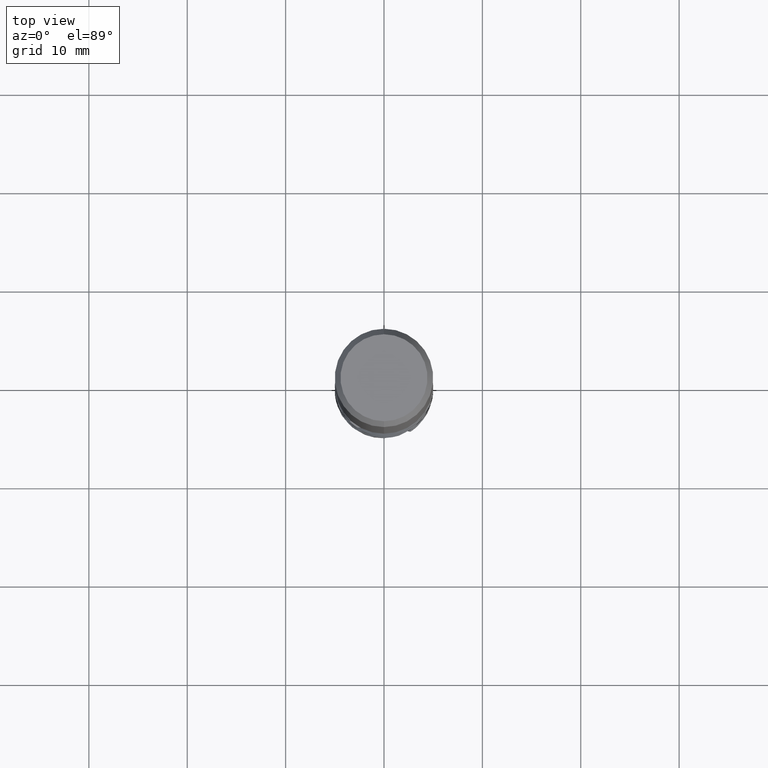
[diagram: clean part render]
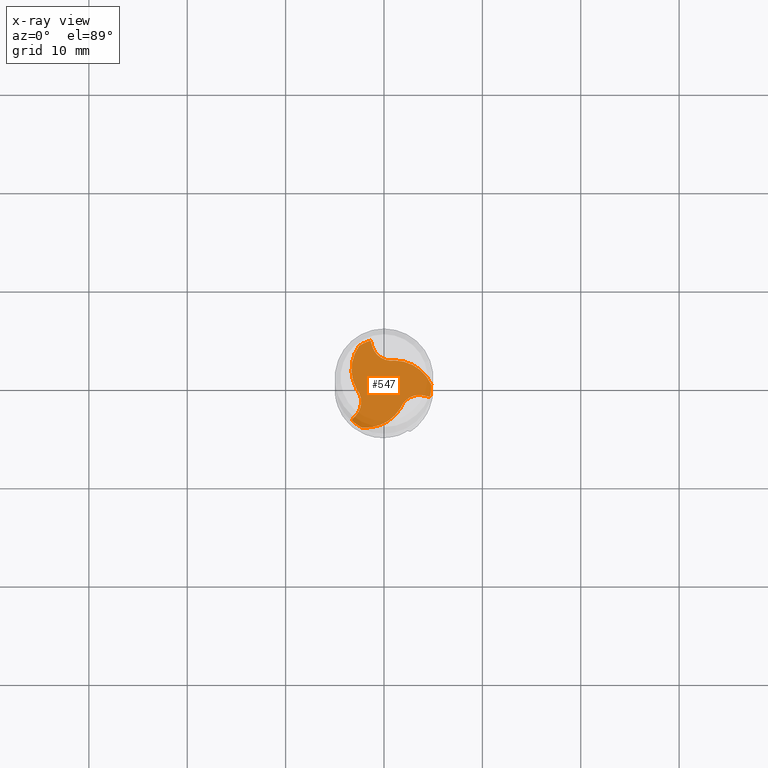
[diagram: x-ray — body ghosted, one internal face saturated and labeled with its STEP entity id]
A machine part, top view, then the same camera in x-ray: the body is ghosted and one INTERNAL B-rep face — a face not visible from any outside direction — is saturated and labeled: STEP entity #547.
In plain terms, the highlighted planar face has unit normal (0, 0, -1).
Its self-contained STEP definition (entity closure, byte-faithful):
#485=VERTEX_POINT('',#1388);
#547=ADVANCED_FACE('',(#1456),#1457,.T.);
#549=VERTEX_POINT('',#1459);
#559=EDGE_CURVE('',#1255,#733,#1470,.T.);
#595=EDGE_CURVE('',#1079,#677,#1508,.T.);
#607=VERTEX_POINT('',#1522);
#653=EDGE_CURVE('',#677,#607,#1572,.T.);
#677=VERTEX_POINT('',#1598);
#733=VERTEX_POINT('',#1661);
#755=EDGE_CURVE('',#549,#797,#1684,.T.);
#797=VERTEX_POINT('',#1729);
#855=EDGE_CURVE('',#733,#1171,#1793,.T.);
#877=EDGE_CURVE('',#797,#1111,#1815,.T.);
#885=EDGE_CURVE('',#485,#1255,#1824,.T.);
#887=EDGE_CURVE('',#1143,#1095,#1826,.T.);
#933=EDGE_CURVE('',#1171,#1079,#1878,.T.);
#953=EDGE_CURVE('',#1095,#549,#1898,.T.);
#1023=EDGE_CURVE('',#1111,#485,#1971,.T.);
#1079=VERTEX_POINT('',#2034);
#1095=VERTEX_POINT('',#2052);
#1111=VERTEX_POINT('',#2070);
#1143=VERTEX_POINT('',#2108);
#1171=VERTEX_POINT('',#2139);
#1255=VERTEX_POINT('',#2232);
#1269=EDGE_CURVE('',#607,#1143,#2247,.T.);
#1388=CARTESIAN_POINT('',(1.09801736875809,2.58270880208707,-48.0000000000019));
#1456=FACE_OUTER_BOUND('',#2804,.T.);
#1457=PLANE('',#2805);
#1459=CARTESIAN_POINT('',(-2.51628546687226,4.08752094205124,-48.0000000000004));
#1470=CIRCLE('',#2869,4.79995);
#1508=CIRCLE('',#3083,4.134);
#1522=CARTESIAN_POINT('',(-3.3053496781903,-3.48054356493167,-48.0000000000004));
#1572=CIRCLE('',#3508,4.79995);
#1598=CARTESIAN_POINT('',(-2.28175424088139,-4.22292760851045,-48.0));
#1661=CARTESIAN_POINT('',(4.66691398530444,-1.12224500723763,-48.0));
#1684=CIRCLE('',#4725,4.79995);
#1729=CARTESIAN_POINT('',(-1.36156430711419,4.60278857216934,-48.0));
#1793=LINE('',#5448,#5449);
#1815=LINE('',#5542,#5543);
#1824=CIRCLE('',#5555,4.134);
#1826=CIRCLE('',#5558,2.03333333);
#1878=CIRCLE('',#5740,2.03333333);
#1898=CIRCLE('',#5854,4.134);
#1971=CIRCLE('',#6693,2.03333333);
#2034=CARTESIAN_POINT('',(1.6876827488071,-2.24226533618483,-48.0000000000021));
#2052=CARTESIAN_POINT('',(-2.78570011756651,-0.34044346590494,-48.0000000000004));
#2070=CARTESIAN_POINT('',(-1.18665347490892,4.01149987914423,-48.0000000000019));
#2108=CARTESIAN_POINT('',(-2.88073406516509,-3.03342199433476,-48.0000000000004));
#2139=CARTESIAN_POINT('',(4.06738754007264,-0.978077884812166,-48.0000000000021));
#2232=CARTESIAN_POINT('',(4.79803970775342,0.135406666458643,-48.0));
#2247=LINE('',#8291,#8292);
#2804=EDGE_LOOP('',(#9513,#9514,#9515,#9516,#9517,#9518,#9519,#9520,#9521,#9522,#9523,#9524));
#2805=AXIS2_PLACEMENT_3D('',#9525,#9526,#9527);
#2869=AXIS2_PLACEMENT_3D('',#9537,#9538,#9539);
#3083=AXIS2_PLACEMENT_3D('',#9576,#9577,#9578);
#3508=AXIS2_PLACEMENT_3D('',#9645,#9646,#9647);
#4725=AXIS2_PLACEMENT_3D('',#9770,#9771,#9772);
#5448=CARTESIAN_POINT('',(4.06738754007264,-0.978077884812166,-48.0000000000021));
#5449=VECTOR('',#9873,0.999999999999999);
#5542=CARTESIAN_POINT('',(-1.18665347490892,4.01149987914423,-48.0000000000019));
#5543=VECTOR('',#9888,0.999999999999999);
#5555=AXIS2_PLACEMENT_3D('',#9900,#9901,#9902);
#5558=AXIS2_PLACEMENT_3D('',#9903,#9904,#9905);
#5740=AXIS2_PLACEMENT_3D('',#9980,#9981,#9982);
#5854=AXIS2_PLACEMENT_3D('',#9995,#9996,#9997);
#6693=AXIS2_PLACEMENT_3D('',#10032,#10033,#10034);
#8291=CARTESIAN_POINT('',(-2.88073406516509,-3.03342199433476,-48.0000000000004));
#8292=VECTOR('',#10367,0.999999999999999);
#9513=ORIENTED_EDGE('',*,*,#877,.T.);
#9514=ORIENTED_EDGE('',*,*,#1023,.T.);
#9515=ORIENTED_EDGE('',*,*,#885,.T.);
#9516=ORIENTED_EDGE('',*,*,#559,.T.);
#9517=ORIENTED_EDGE('',*,*,#855,.T.);
#9518=ORIENTED_EDGE('',*,*,#933,.T.);
#9519=ORIENTED_EDGE('',*,*,#595,.T.);
#9520=ORIENTED_EDGE('',*,*,#653,.T.);
#9521=ORIENTED_EDGE('',*,*,#1269,.T.);
#9522=ORIENTED_EDGE('',*,*,#887,.T.);
#9523=ORIENTED_EDGE('',*,*,#953,.T.);
#9524=ORIENTED_EDGE('',*,*,#755,.T.);
#9525=CARTESIAN_POINT('',(0.0,2.399975,-48.0));
#9526=DIRECTION('',(0.0,0.0,-1.0));
#9527=DIRECTION('',(0.0,1.0,0.0));
#9537=CARTESIAN_POINT('',(0.0,0.0,-48.0));
#9538=DIRECTION('',(0.0,0.0,-1.0));
#9539=DIRECTION('',(0.0,1.0,0.0));
#9576=CARTESIAN_POINT('',(-1.85461753568282,-0.111053311419937,-48.0000000000021));
#9577=DIRECTION('',(-2.83106871279415E-015,-1.04638520070921E-014,-1.0));
#9578=DIRECTION('',(0.856869928517156,-0.51553266201377,2.96859983457524E-015));
#9645=CARTESIAN_POINT('',(0.0,0.0,-48.0));
#9646=DIRECTION('',(0.0,0.0,-1.0));
#9647=DIRECTION('',(0.0,1.0,0.0));
#9770=CARTESIAN_POINT('',(0.0,0.0,-48.0));
#9771=DIRECTION('',(0.0,0.0,-1.0));
#9772=DIRECTION('',(0.0,1.0,0.0));
#9873=DIRECTION('',(-0.972283874895457,0.233803478627407,4.44089209850063E-016));
#9888=DIRECTION('',(0.283662185463227,-0.958924274663138,5.55111512312579E-015));
#9900=CARTESIAN_POINT('',(1.02348375670579,-1.55061924449651,-48.0000000000019));
#9901=DIRECTION('',(1.08246744900953E-014,-2.72004641033163E-015,-1.0));
#9902=DIRECTION('',(0.0180294175259583,0.999837456841698,-2.52444170943285E-015));
#9903=CARTESIAN_POINT('',(-4.35514634815408,-1.63322456144658,-48.0000000000004));
#9904=DIRECTION('',(-4.82947015711943E-015,-8.1601392309949E-015,1.0));
#9905=DIRECTION('',(0.771858803112674,0.635793982401116,8.91583647376441E-015));
#9980=CARTESIAN_POINT('',(3.59198713437224,-2.95505509397657,-48.0000000000021));
#9981=DIRECTION('',(2.83106871279415E-015,1.04638520070921E-014,1.0));
#9982=DIRECTION('',(-0.936543141888984,0.350552340429658,-1.01670982381188E-015));
#9995=CARTESIAN_POINT('',(0.831133778975783,1.6616725559137,-48.0000000000004));
#9996=DIRECTION('',(4.82947015711943E-015,8.1601392309949E-015,-1.0));
#9997=DIRECTION('',(-0.874899346043125,-0.484304794827918,-8.17729483823281E-015));
#10032=CARTESIAN_POINT('',(0.76315921378054,4.58827965542046,-48.0000000000019));
#10033=DIRECTION('',(-1.08246744900953E-014,2.72004641033163E-015,1.0));
#10034=DIRECTION('',(0.164684338776323,-0.986346322830782,4.46556213562995E-015));
#10367=DIRECTION('',(0.688621689432243,0.725120796035725,9.38138455808257E-015));